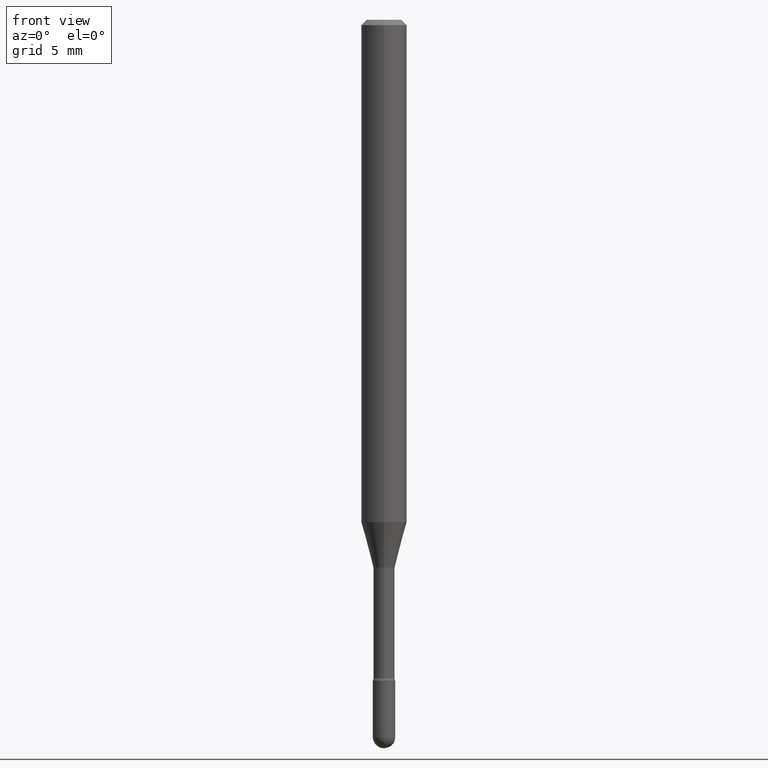
[diagram: clean part render]
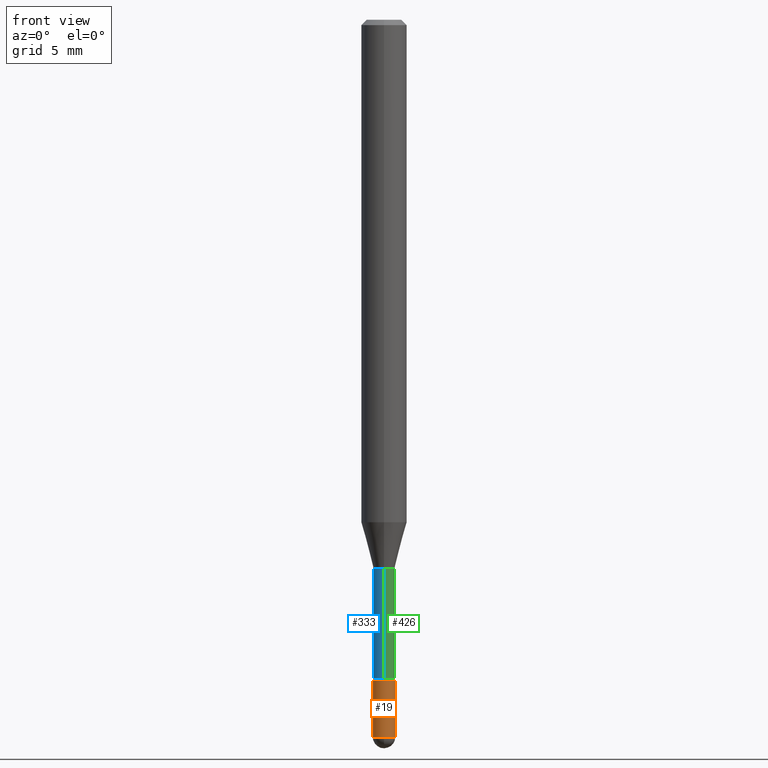
[diagram: same view with three faces highlighted in distinct colors, each labeled with its STEP entity id]
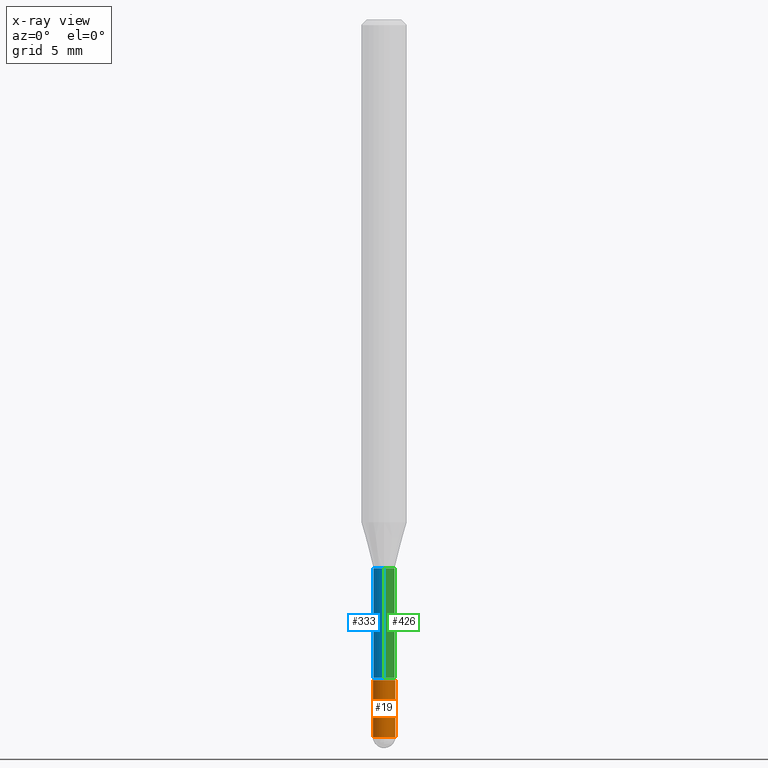
[diagram: x-ray of the same camera — body ghosted, the three highlighted faces saturated]
A machine part, front view with three faces highlighted in distinct colors.
The next image is the same camera in x-ray (body ghosted, the three faces saturated) — at least one of them is partly hidden behind the body in this view.
Their STEP definitions:

[orange] entity #19 — the highlighted cylindrical surface (edge-blend (fillet) strip) has radius 0.7874 mm, axis along (-0, 0, 1).
#10 = VERTEX_POINT ( 'NONE', #444 ) ;
#19 = ADVANCED_FACE ( 'NONE', ( #193 ), #467, .T. ) ;
#28 = CARTESIAN_POINT ( 'NONE',  ( 4.815128079378534076E-29, -6.874726756182154000E-15, -1.969000000000000306 ) ) ;
#55 = CIRCLE ( 'NONE', #410, 0.03099999999999999978 ) ;
#80 = ORIENTED_EDGE ( 'NONE', *, *, #237, .F. ) ;
#100 = VECTOR ( 'NONE', #425, 39.37007874015748143 ) ;
#110 = DIRECTION ( 'NONE',  ( 1.000000000000000000, -6.982962677686266711E-15, 4.876176775795935232E-29 ) ) ;
#119 = CARTESIAN_POINT ( 'NONE',  ( 0.03099999999999999978, -2.164718430082742572E-16, 1.511614800496739984E-30 ) ) ;
#135 = EDGE_CURVE ( 'NONE', #390, #412, #168, .T. ) ;
#148 = VERTEX_POINT ( 'NONE', #403 ) ;
#162 = ORIENTED_EDGE ( 'NONE', *, *, #277, .F. ) ;
#168 = LINE ( 'NONE', #119, #449 ) ;
#172 = DIRECTION ( 'NONE',  ( -2.445468806185136877E-29, 3.491481338843145188E-15, 1.000000000000000000 ) ) ;
#184 = CARTESIAN_POINT ( 'NONE',  ( 0.03099999999999999978, -6.550018991669739348E-15, -1.813999999999999835 ) ) ;
#193 = FACE_OUTER_BOUND ( 'NONE', #376, .T. ) ;
#202 = DIRECTION ( 'NONE',  ( 1.000000000000000000, -6.982962677686270655E-15, 0.000000000000000000 ) ) ;
#203 = EDGE_CURVE ( 'NONE', #148, #390, #398, .T. ) ;
#207 = CARTESIAN_POINT ( 'NONE',  ( -0.03099999999999999978, -6.383868704336178649E-15, -1.969000000000000306 ) ) ;
#237 = EDGE_CURVE ( 'NONE', #10, #412, #560, .T. ) ;
#253 = CARTESIAN_POINT ( 'NONE',  ( 0.03099999999999999978, -6.820608795430084234E-15, -1.969000000000000306 ) ) ;
#263 = DIRECTION ( 'NONE',  ( 1.000000000000000000, -6.982962677686270655E-15, 0.000000000000000000 ) ) ;
#277 = EDGE_CURVE ( 'NONE', #282, #10, #418, .T. ) ;
#282 = VERTEX_POINT ( 'NONE', #207 ) ;
#287 = DIRECTION ( 'NONE',  ( -2.445468806185136597E-29, 3.491481338843145583E-15, 1.000000000000000000 ) ) ;
#294 = DIRECTION ( 'NONE',  ( -2.445468806185136597E-29, 3.491481338843145583E-15, 1.000000000000000000 ) ) ;
#335 = CARTESIAN_POINT ( 'NONE',  ( -0.03099999999999999978, 2.202682480856310560E-16, -1.524869877979020612E-30 ) ) ;
#364 = CARTESIAN_POINT ( 'NONE',  ( 0.000000000000000000, 0.000000000000000000, 0.000000000000000000 ) ) ;
#375 = DIRECTION ( 'NONE',  ( -2.445468806185136597E-29, 3.491481338843145583E-15, 1.000000000000000000 ) ) ;
#376 = EDGE_LOOP ( 'NONE', ( #162, #441, #485, #476, #80 ) ) ;
#383 = EDGE_CURVE ( 'NONE', #282, #148, #55, .T. ) ;
#390 = VERTEX_POINT ( 'NONE', #253 ) ;
#398 = CIRCLE ( 'NONE', #479, 0.03099999999999999978 ) ;
#403 = CARTESIAN_POINT ( 'NONE',  ( -2.202682480855828862E-16, -0.03100000000000687969, -1.969000000000000306 ) ) ;
#410 = AXIS2_PLACEMENT_3D ( 'NONE', #28, #294, #263 ) ;
#412 = VERTEX_POINT ( 'NONE', #184 ) ;
#414 = DIRECTION ( 'NONE',  ( -2.445468806185136597E-29, 3.491481338843145583E-15, 1.000000000000000000 ) ) ;
#418 = LINE ( 'NONE', #335, #100 ) ;
#425 = DIRECTION ( 'NONE',  ( -2.445468806185136877E-29, 3.491481338843145188E-15, 1.000000000000000000 ) ) ;
#441 = ORIENTED_EDGE ( 'NONE', *, *, #383, .T. ) ;
#444 = CARTESIAN_POINT ( 'NONE',  ( -0.03099999999999999978, -6.383868704336178649E-15, -1.813999999999999835 ) ) ;
#449 = VECTOR ( 'NONE', #172, 39.37007874015748143 ) ;
#466 = CARTESIAN_POINT ( 'NONE',  ( 4.436080414419837365E-29, -6.333547148661465016E-15, -1.813999999999999835 ) ) ;
#467 = CYLINDRICAL_SURFACE ( 'NONE', #470, 0.03099999999999999978 ) ;
#470 = AXIS2_PLACEMENT_3D ( 'NONE', #364, #287, #110 ) ;
#476 = ORIENTED_EDGE ( 'NONE', *, *, #135, .T. ) ;
#479 = AXIS2_PLACEMENT_3D ( 'NONE', #542, #414, #202 ) ;
#485 = ORIENTED_EDGE ( 'NONE', *, *, #203, .T. ) ;
#537 = AXIS2_PLACEMENT_3D ( 'NONE', #466, #375, #545 ) ;
#542 = CARTESIAN_POINT ( 'NONE',  ( 4.815128079378534076E-29, -6.874726756182154000E-15, -1.969000000000000306 ) ) ;
#545 = DIRECTION ( 'NONE',  ( 1.000000000000000000, -6.982962677686270655E-15, 0.000000000000000000 ) ) ;
#560 = CIRCLE ( 'NONE', #537, 0.03099999999999999978 ) ;

[blue] entity #333 — the highlighted cylindrical surface (edge-blend (fillet) strip) has radius 0.7404 mm, axis along (-0, 0, 1).
#12 = VERTEX_POINT ( 'NONE', #231 ) ;
#26 = CARTESIAN_POINT ( 'NONE',  ( 3.682813959862141921E-29, -5.258083448300944094E-15, -1.505974787463811193 ) ) ;
#42 = CARTESIAN_POINT ( 'NONE',  ( 2.136957277798946103E-16, 0.02914999999999373301, -1.806783525791634704 ) ) ;
#44 = CIRCLE ( 'NONE', #113, 0.02914999999999999883 ) ;
#49 = LINE ( 'NONE', #526, #187 ) ;
#53 = CARTESIAN_POINT ( 'NONE',  ( -2.035533620545548103E-16, -0.02915000000000001965, 5.798500911664849019E-16 ) ) ;
#86 = LINE ( 'NONE', #53, #215 ) ;
#109 = VERTEX_POINT ( 'NONE', #42 ) ;
#113 = AXIS2_PLACEMENT_3D ( 'NONE', #26, #473, #258 ) ;
#122 = DIRECTION ( 'NONE',  ( -2.445468536737133447E-29, 3.491481724708021844E-15, 1.000000000000000000 ) ) ;
#131 = AXIS2_PLACEMENT_3D ( 'NONE', #256, #122, #343 ) ;
#136 = ORIENTED_EDGE ( 'NONE', *, *, #350, .F. ) ;
#139 = CARTESIAN_POINT ( 'NONE',  ( -2.035533620545178324E-16, -0.02915000000000525851, -1.505974787463811193 ) ) ;
#159 = EDGE_LOOP ( 'NONE', ( #511, #307, #360, #136 ) ) ;
#169 = FACE_OUTER_BOUND ( 'NONE', #159, .T. ) ;
#187 = VECTOR ( 'NONE', #275, 39.37007874015748143 ) ;
#188 = CIRCLE ( 'NONE', #504, 0.02915000000000004046 ) ;
#215 = VECTOR ( 'NONE', #490, 39.37007874015748143 ) ;
#217 = EDGE_CURVE ( 'NONE', #109, #12, #49, .T. ) ;
#223 = VERTEX_POINT ( 'NONE', #229 ) ;
#229 = CARTESIAN_POINT ( 'NONE',  ( -2.035533620545107573E-16, -0.02915000000000635139, -1.806783525791634704 ) ) ;
#231 = CARTESIAN_POINT ( 'NONE',  ( 2.071232074741134707E-16, 0.02914999999999473915, -1.505974787463811193 ) ) ;
#256 = CARTESIAN_POINT ( 'NONE',  ( -1.169113584055446105E-44, 1.669184350826100908E-30, 4.780733988912460139E-16 ) ) ;
#258 = DIRECTION ( 'NONE',  ( -6.982962677686265922E-15, -1.000000000000000000, 0.000000000000000000 ) ) ;
#275 = DIRECTION ( 'NONE',  ( -2.445468536737133447E-29, 3.491481724708022239E-15, 1.000000000000000000 ) ) ;
#302 = CYLINDRICAL_SURFACE ( 'NONE', #131, 0.02915000000000001965 ) ;
#307 = ORIENTED_EDGE ( 'NONE', *, *, #533, .T. ) ;
#311 = DIRECTION ( 'NONE',  ( -2.445468536737133447E-29, 3.491481724708021844E-15, 1.000000000000000000 ) ) ;
#333 = ADVANCED_FACE ( 'NONE', ( #169 ), #302, .T. ) ;
#343 = DIRECTION ( 'NONE',  ( -6.982962677686266711E-15, -1.000000000000000000, 3.491481724708020661E-15 ) ) ;
#350 = EDGE_CURVE ( 'NONE', #12, #478, #44, .T. ) ;
#360 = ORIENTED_EDGE ( 'NONE', *, *, #515, .T. ) ;
#442 = DIRECTION ( 'NONE',  ( -6.982962677686266711E-15, -1.000000000000000000, 0.000000000000000000 ) ) ;
#473 = DIRECTION ( 'NONE',  ( -2.445468536737133447E-29, 3.491481724708021844E-15, 1.000000000000000000 ) ) ;
#478 = VERTEX_POINT ( 'NONE', #139 ) ;
#490 = DIRECTION ( 'NONE',  ( -2.445468536737133447E-29, 3.491481724708022239E-15, 1.000000000000000000 ) ) ;
#504 = AXIS2_PLACEMENT_3D ( 'NONE', #519, #311, #442 ) ;
#511 = ORIENTED_EDGE ( 'NONE', *, *, #217, .F. ) ;
#515 = EDGE_CURVE ( 'NONE', #223, #478, #86, .T. ) ;
#519 = CARTESIAN_POINT ( 'NONE',  ( 4.418432265018427708E-29, -6.308351660805017310E-15, -1.806783525791634704 ) ) ;
#526 = CARTESIAN_POINT ( 'NONE',  ( 2.071232074740693191E-16, 0.02915000000000001965, 3.762967066160071753E-16 ) ) ;
#533 = EDGE_CURVE ( 'NONE', #109, #223, #188, .T. ) ;

[green] entity #426 — the highlighted cylindrical surface (edge-blend (fillet) strip) has radius 0.7404 mm, axis along (-0, 0, 1).
#12 = VERTEX_POINT ( 'NONE', #231 ) ;
#36 = ORIENTED_EDGE ( 'NONE', *, *, #217, .T. ) ;
#42 = CARTESIAN_POINT ( 'NONE',  ( 2.136957277798946103E-16, 0.02914999999999373301, -1.806783525791634704 ) ) ;
#47 = CARTESIAN_POINT ( 'NONE',  ( 4.418432265018427708E-29, -6.308351660805017310E-15, -1.806783525791634704 ) ) ;
#48 = EDGE_CURVE ( 'NONE', #478, #12, #503, .T. ) ;
#49 = LINE ( 'NONE', #526, #187 ) ;
#53 = CARTESIAN_POINT ( 'NONE',  ( -2.035533620545548103E-16, -0.02915000000000001965, 5.798500911664849019E-16 ) ) ;
#70 = ORIENTED_EDGE ( 'NONE', *, *, #143, .T. ) ;
#86 = LINE ( 'NONE', #53, #215 ) ;
#87 = CYLINDRICAL_SURFACE ( 'NONE', #292, 0.02915000000000001965 ) ;
#90 = DIRECTION ( 'NONE',  ( -2.445468536737133447E-29, 3.491481724708021844E-15, 1.000000000000000000 ) ) ;
#103 = DIRECTION ( 'NONE',  ( -6.982962677686265922E-15, -1.000000000000000000, 0.000000000000000000 ) ) ;
#109 = VERTEX_POINT ( 'NONE', #42 ) ;
#123 = ORIENTED_EDGE ( 'NONE', *, *, #48, .F. ) ;
#139 = CARTESIAN_POINT ( 'NONE',  ( -2.035533620545178324E-16, -0.02915000000000525851, -1.505974787463811193 ) ) ;
#143 = EDGE_CURVE ( 'NONE', #223, #109, #436, .T. ) ;
#146 = DIRECTION ( 'NONE',  ( -6.982962677686266711E-15, -1.000000000000000000, 0.000000000000000000 ) ) ;
#187 = VECTOR ( 'NONE', #275, 39.37007874015748143 ) ;
#204 = DIRECTION ( 'NONE',  ( -2.445468536737133447E-29, 3.491481724708021844E-15, 1.000000000000000000 ) ) ;
#215 = VECTOR ( 'NONE', #490, 39.37007874015748143 ) ;
#217 = EDGE_CURVE ( 'NONE', #109, #12, #49, .T. ) ;
#223 = VERTEX_POINT ( 'NONE', #229 ) ;
#229 = CARTESIAN_POINT ( 'NONE',  ( -2.035533620545107573E-16, -0.02915000000000635139, -1.806783525791634704 ) ) ;
#231 = CARTESIAN_POINT ( 'NONE',  ( 2.071232074741134707E-16, 0.02914999999999473915, -1.505974787463811193 ) ) ;
#242 = ORIENTED_EDGE ( 'NONE', *, *, #515, .F. ) ;
#275 = DIRECTION ( 'NONE',  ( -2.445468536737133447E-29, 3.491481724708022239E-15, 1.000000000000000000 ) ) ;
#288 = EDGE_LOOP ( 'NONE', ( #70, #36, #123, #242 ) ) ;
#292 = AXIS2_PLACEMENT_3D ( 'NONE', #563, #90, #354 ) ;
#354 = DIRECTION ( 'NONE',  ( -6.982962677686266711E-15, -1.000000000000000000, 3.491481724708020661E-15 ) ) ;
#388 = DIRECTION ( 'NONE',  ( -2.445468536737133447E-29, 3.491481724708021844E-15, 1.000000000000000000 ) ) ;
#426 = ADVANCED_FACE ( 'NONE', ( #486 ), #87, .T. ) ;
#436 = CIRCLE ( 'NONE', #463, 0.02915000000000004046 ) ;
#459 = CARTESIAN_POINT ( 'NONE',  ( 3.682813959862141921E-29, -5.258083448300944094E-15, -1.505974787463811193 ) ) ;
#463 = AXIS2_PLACEMENT_3D ( 'NONE', #47, #388, #146 ) ;
#478 = VERTEX_POINT ( 'NONE', #139 ) ;
#484 = AXIS2_PLACEMENT_3D ( 'NONE', #459, #204, #103 ) ;
#486 = FACE_OUTER_BOUND ( 'NONE', #288, .T. ) ;
#490 = DIRECTION ( 'NONE',  ( -2.445468536737133447E-29, 3.491481724708022239E-15, 1.000000000000000000 ) ) ;
#503 = CIRCLE ( 'NONE', #484, 0.02914999999999999883 ) ;
#515 = EDGE_CURVE ( 'NONE', #223, #478, #86, .T. ) ;
#526 = CARTESIAN_POINT ( 'NONE',  ( 2.071232074740693191E-16, 0.02915000000000001965, 3.762967066160071753E-16 ) ) ;
#563 = CARTESIAN_POINT ( 'NONE',  ( -1.169113584055446105E-44, 1.669184350826100908E-30, 4.780733988912460139E-16 ) ) ;